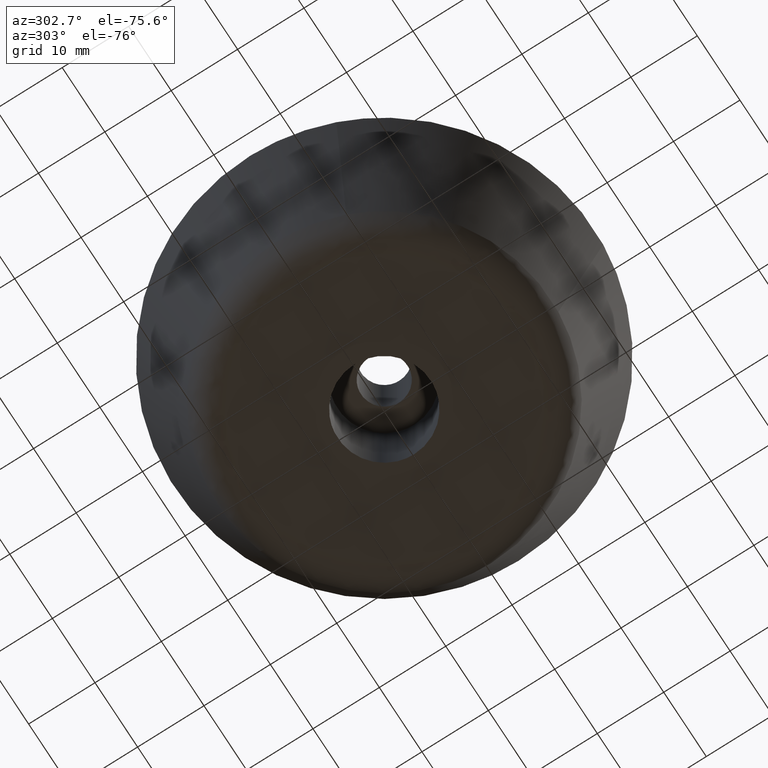
[diagram: clean part render]
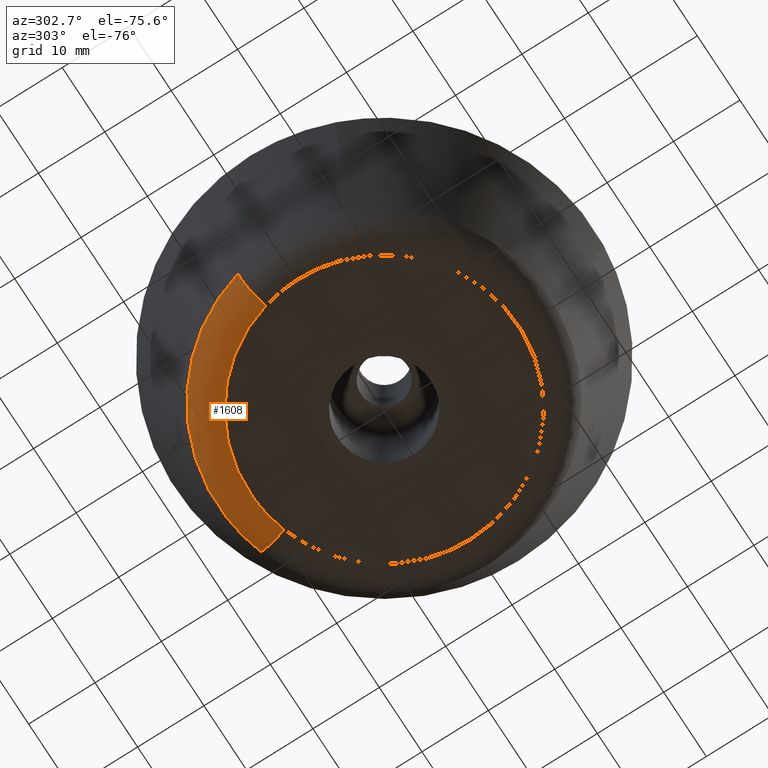
[diagram: same view with one face highlighted and labeled with its STEP entity id]
A machine part, auxiliary view. The second image highlights one B-rep face of the part: STEP entity #1608.
In plain terms, the highlighted face is a freeform B-spline surface patch.
Its self-contained STEP definition (entity closure, byte-faithful):
#847=CARTESIAN_POINT('',(7.904105843229777,23.762465625612439,3.614196996014758));
#848=VERTEX_POINT('',#847);
#862=CARTESIAN_POINT('',(-24.175624730555271,6.532138292832401,3.614196996010016));
#863=VERTEX_POINT('',#862);
#864=CARTESIAN_POINT('',(-24.175624730555267,6.532138292832401,3.614196996010016));
#865=CARTESIAN_POINT('',(-19.174198023007886,25.042556999999949,3.614197000000105));
#866=CARTESIAN_POINT('',(0.0,25.042556999999949,3.614197000000105));
#867=CARTESIAN_POINT('',(4.055710056229796,25.042556999999945,3.614197000000106));
#868=CARTESIAN_POINT('',(7.904105843229777,23.762465625612435,3.614196996014758));
#876=(BOUNDED_CURVE()B_SPLINE_CURVE(2,(#864,#865,#866,#867,#868),.UNSPECIFIED.,.F.,.U.)B_SPLINE_CURVE_WITH_KNOTS((3,2,3),(0.044477792329169,0.250000000000000,0.303659303332146),.UNSPECIFIED.)CURVE()GEOMETRIC_REPRESENTATION_ITEM()RATIONAL_B_SPLINE_CURVE((0.914323587275900,0.759215756230574,1.0,0.937134215711041,0.901255104929078))REPRESENTATION_ITEM(''));
#877=EDGE_CURVE('',#863,#848,#876,.T.);
#1482=CARTESIAN_POINT('',(6.387796736638805,19.203917987120651,8.823858E-016));
#1483=VERTEX_POINT('',#1482);
#1499=CARTESIAN_POINT('',(7.904105843229777,23.762465625612432,3.614196996014758));
#1500=CARTESIAN_POINT('',(7.575046882880354,22.773201009333086,1.782360E-009));
#1501=CARTESIAN_POINT('',(6.387796736638805,19.203917987120644,8.823858E-016));
#1509=(BOUNDED_CURVE()B_SPLINE_CURVE(2,(#1499,#1500,#1501),.UNSPECIFIED.,.F.,.U.)B_SPLINE_CURVE_WITH_KNOTS((3,3),(-1.687246733952539,-0.307730782720465),.UNSPECIFIED.)CURVE()GEOMETRIC_REPRESENTATION_ITEM()RATIONAL_B_SPLINE_CURVE((0.879456775961552,0.703298829066032,0.880744159818747))REPRESENTATION_ITEM(''));
#1510=EDGE_CURVE('',#848,#1483,#1509,.T.);
#1517=CARTESIAN_POINT('',(-19.537817410401811,5.279024914173268,9.241470E-016));
#1518=VERTEX_POINT('',#1517);
#1519=CARTESIAN_POINT('',(-24.175624730555267,6.532138292832401,3.614196996010017));
#1520=CARTESIAN_POINT('',(-23.169159723983331,6.260196256869934,1.856448E-009));
#1521=CARTESIAN_POINT('',(-19.537817410401807,5.279024914173269,9.241470E-016));
#1529=(BOUNDED_CURVE()B_SPLINE_CURVE(2,(#1519,#1520,#1521),.UNSPECIFIED.,.F.,.U.)B_SPLINE_CURVE_WITH_KNOTS((3,3),(-1.687246733950275,-0.307730782743080),.UNSPECIFIED.)CURVE()GEOMETRIC_REPRESENTATION_ITEM()RATIONAL_B_SPLINE_CURVE((0.899694687484824,0.719483023524904,0.901011696397618))REPRESENTATION_ITEM(''));
#1530=EDGE_CURVE('',#863,#1518,#1529,.T.);
#1565=CARTESIAN_POINT('',(-24.246960030990710,6.551412750172303,3.902272819996890));
#1566=CARTESIAN_POINT('',(-17.695547280818399,30.798372781162993,3.902272819996889));
#1567=CARTESIAN_POINT('',(6.551412750172302,24.246960030990710,3.902272819996890));
#1568=CARTESIAN_POINT('',(7.245349659424949,24.059461593690425,3.902272819996888));
#1569=CARTESIAN_POINT('',(7.927427266061900,23.832582250123021,3.902272819996889));
#1570=CARTESIAN_POINT('',(-23.346322269296778,6.308064730143947,-0.243442813136447));
#1571=CARTESIAN_POINT('',(-17.038257539152831,29.654386999440725,-0.243442813136447));
#1572=CARTESIAN_POINT('',(6.308064730143947,23.346322269296778,-0.243442813136447));
#1573=CARTESIAN_POINT('',(6.976225798470257,23.165788341059713,-0.243442813136447));
#1574=CARTESIAN_POINT('',(7.632968070361826,22.947336285032851,-0.243442813136447));
#1575=CARTESIAN_POINT('',(-19.251272896406675,5.201601955435395,0.008817982913066));
#1576=CARTESIAN_POINT('',(-14.049670940971277,24.452874851842068,0.008817982913066));
#1577=CARTESIAN_POINT('',(5.201601955435395,19.251272896406675,0.008817982913066));
#1578=CARTESIAN_POINT('',(5.752564583156024,19.102405426855693,0.008817982913066));
#1579=CARTESIAN_POINT('',(6.294111322422018,18.922270838767492,0.008817982913066));
#1587=(BOUNDED_SURFACE()B_SPLINE_SURFACE(2,2,((#1565,#1570,#1575),(#1566,#1571,#1576),(#1567,#1572,#1577),(#1568,#1573,#1578),(#1569,#1574,#1579)),.UNSPECIFIED.,.F.,.F.,.U.)B_SPLINE_SURFACE_WITH_KNOTS((3,2,3),(3,3),(0.0,41.614297546793338,43.278867861205612),(0.0,7.350736736167097),.UNSPECIFIED.)GEOMETRIC_REPRESENTATION_ITEM()RATIONAL_B_SPLINE_SURFACE(((0.918600397940813,0.700511513727120,0.920049005732119),(0.649548570584610,0.495336441655700,0.650572890977122),(0.918600397940813,0.700511513727120,0.920049005732119),(0.907838335110078,0.692304518671071,0.909269971421617),(0.897937236484721,0.684754082593362,0.899353259033580)))REPRESENTATION_ITEM('')SURFACE());
#1588=CARTESIAN_POINT('',(-19.537817410401804,5.279024914173269,9.241470E-016));
#1589=CARTESIAN_POINT('',(-15.495855197897384,20.238439000000000,0.0));
#1590=CARTESIAN_POINT('',(0.0,20.238439000000000,0.0));
#1591=CARTESIAN_POINT('',(3.277670110829428,20.238439000000003,0.0));
#1592=CARTESIAN_POINT('',(6.387796736638804,19.203917987120644,8.823858E-016));
#1600=(BOUNDED_CURVE()B_SPLINE_CURVE(2,(#1588,#1589,#1590,#1591,#1592),.UNSPECIFIED.,.F.,.U.)B_SPLINE_CURVE_WITH_KNOTS((3,2,3),(0.044477792331371,0.250000000000000,0.303659303333953),.UNSPECIFIED.)CURVE()GEOMETRIC_REPRESENTATION_ITEM()RATIONAL_B_SPLINE_CURVE((0.914323587272577,0.759215756233153,1.0,0.937134215708924,0.901255104926662))REPRESENTATION_ITEM(''));
#1601=EDGE_CURVE('',#1518,#1483,#1600,.T.);
#1602=ORIENTED_EDGE('',*,*,#1601,.F.);
#1603=ORIENTED_EDGE('',*,*,#1530,.F.);
#1604=ORIENTED_EDGE('',*,*,#877,.T.);
#1605=ORIENTED_EDGE('',*,*,#1510,.T.);
#1606=EDGE_LOOP('',(#1602,#1603,#1604,#1605));
#1607=FACE_OUTER_BOUND('',#1606,.T.);
#1608=ADVANCED_FACE('',(#1607),#1587,.T.);